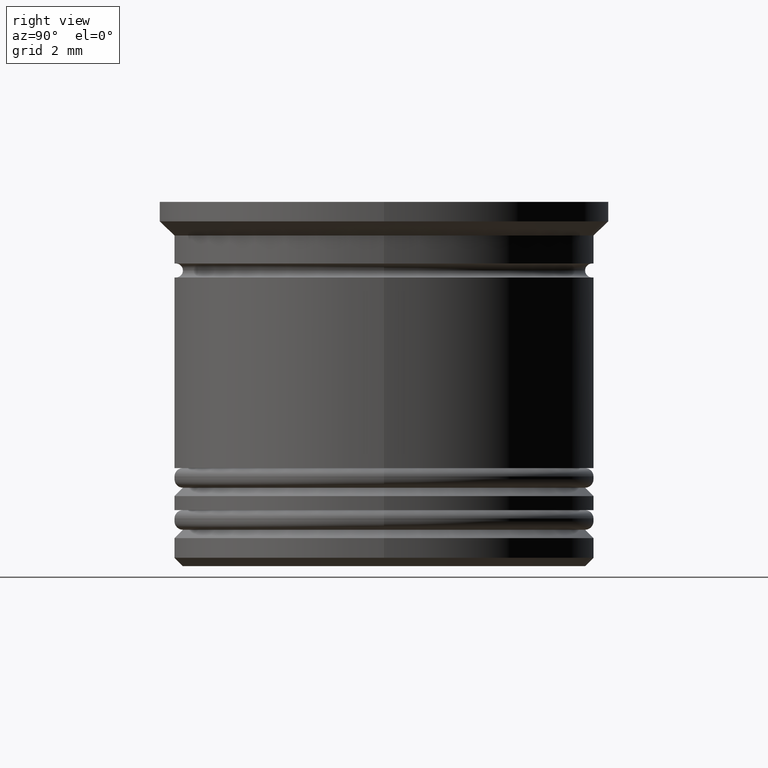
[diagram: clean part render]
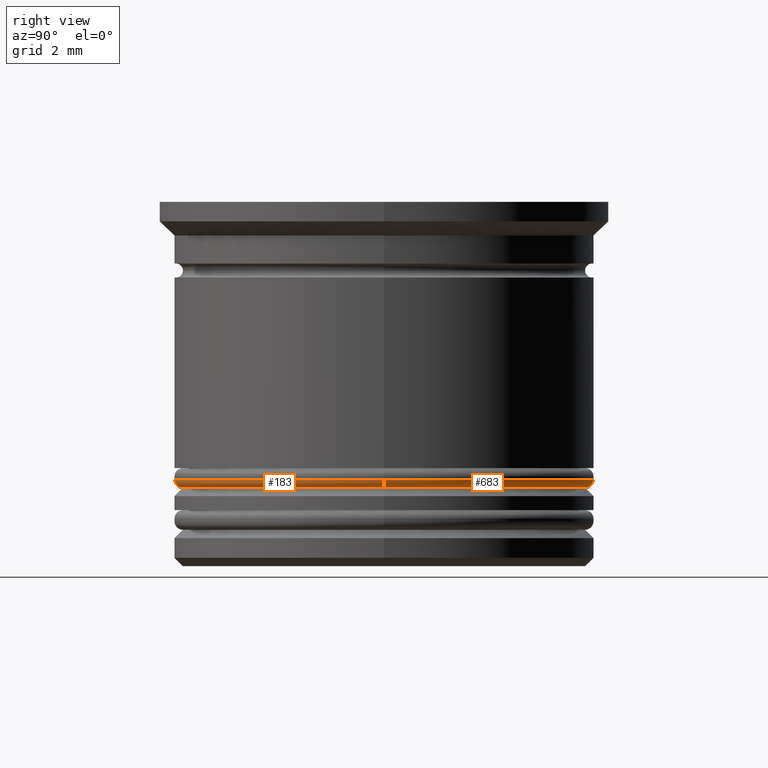
[diagram: same view with one multi-face feature highlighted, each face labeled with its STEP entity id]
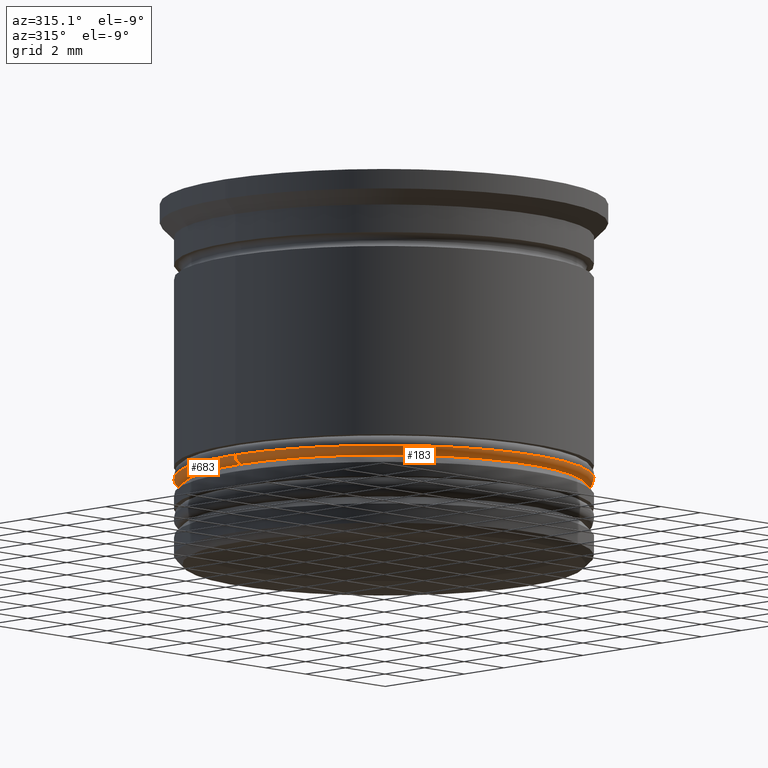
[diagram: same view with one multi-face feature highlighted, each face labeled with its STEP entity id]
A machine part, right view. The highlighted faces form ONE feature: a constant-radius fillet chain: 2 tangent blend faces with common blend radius 0.3 mm. The faces share edges in the B-rep.
A second angle (auxiliary view) of the same feature is appended — it is thin or edge-on in the first view.
Their STEP definitions:
[1] entity #183 (Torus):
#17 = EDGE_CURVE ( 'NONE', #503, #1600, #1275, .T. ) ;
#26 = CARTESIAN_POINT ( 'NONE',  ( 0.000000000000000000, 0.000000000000000000, -9.900000000000005684 ) ) ;
#31 = DIRECTION ( 'NONE',  ( 1.000000000000000000, 0.000000000000000000, 0.000000000000000000 ) ) ;
#52 = DIRECTION ( 'NONE',  ( 0.000000000000000000, 0.000000000000000000, 1.000000000000000000 ) ) ;
#75 = CARTESIAN_POINT ( 'NONE',  ( 0.000000000000000000, 0.000000000000000000, -9.900000000000005684 ) ) ;
#100 = DIRECTION ( 'NONE',  ( 1.000000000000000000, 0.000000000000000000, 0.000000000000000000 ) ) ;
#113 = ORIENTED_EDGE ( 'NONE', *, *, #1989, .F. ) ;
#122 = CARTESIAN_POINT ( 'NONE',  ( 7.200000000000001954, 0.000000000000000000, -9.900000000000005684 ) ) ;
#183 = ADVANCED_FACE ( 'NONE', ( #962 ), #1247, .T. ) ;
#232 = AXIS2_PLACEMENT_3D ( 'NONE', #1336, #1795, #100 ) ;
#361 = AXIS2_PLACEMENT_3D ( 'NONE', #26, #52, #31 ) ;
#462 = CIRCLE ( 'NONE', #1592, 0.2999999999999999334 ) ;
#503 = VERTEX_POINT ( 'NONE', #874 ) ;
#722 = DIRECTION ( 'NONE',  ( 0.000000000000000000, -1.000000000000000000, 0.000000000000000000 ) ) ;
#749 = CARTESIAN_POINT ( 'NONE',  ( -7.200000000000001954, 8.817456953860946247E-16, -9.900000000000005684 ) ) ;
#870 = ORIENTED_EDGE ( 'NONE', *, *, #1118, .T. ) ;
#874 = CARTESIAN_POINT ( 'NONE',  ( -7.500000000000001776, 9.184850993605149917E-16, -9.900000000000005684 ) ) ;
#919 = EDGE_LOOP ( 'NONE', ( #1378, #113, #870, #1260 ) ) ;
#962 = FACE_OUTER_BOUND ( 'NONE', #919, .T. ) ;
#1017 = CARTESIAN_POINT ( 'NONE',  ( -7.200000000000001954, 9.001153973733047589E-16, -10.20000000000000639 ) ) ;
#1034 = VERTEX_POINT ( 'NONE', #1757 ) ;
#1103 = CIRCLE ( 'NONE', #232, 7.200000000000001954 ) ;
#1118 = EDGE_CURVE ( 'NONE', #1034, #1600, #1876, .T. ) ;
#1179 = DIRECTION ( 'NONE',  ( 0.000000000000000000, 0.000000000000000000, 1.000000000000000000 ) ) ;
#1202 = DIRECTION ( 'NONE',  ( 0.000000000000000000, 0.000000000000000000, -1.000000000000000000 ) ) ;
#1229 = DIRECTION ( 'NONE',  ( 1.224646799147353207E-16, 1.000000000000000000, -0.000000000000000000 ) ) ;
#1247 = TOROIDAL_SURFACE ( 'NONE', #361, 7.200000000000001954, 0.2999999999999999889 ) ;
#1260 = ORIENTED_EDGE ( 'NONE', *, *, #17, .F. ) ;
#1272 = VERTEX_POINT ( 'NONE', #1017 ) ;
#1275 = CIRCLE ( 'NONE', #1469, 7.500000000000001776 ) ;
#1336 = CARTESIAN_POINT ( 'NONE',  ( 0.000000000000000000, 0.000000000000000000, -10.20000000000000639 ) ) ;
#1378 = ORIENTED_EDGE ( 'NONE', *, *, #1677, .F. ) ;
#1469 = AXIS2_PLACEMENT_3D ( 'NONE', #75, #1179, #1480 ) ;
#1480 = DIRECTION ( 'NONE',  ( 1.000000000000000000, 0.000000000000000000, 0.000000000000000000 ) ) ;
#1548 = DIRECTION ( 'NONE',  ( -1.000000000000000000, 1.224646799147353207E-16, 0.000000000000000000 ) ) ;
#1592 = AXIS2_PLACEMENT_3D ( 'NONE', #749, #1229, #1548 ) ;
#1600 = VERTEX_POINT ( 'NONE', #1691 ) ;
#1677 = EDGE_CURVE ( 'NONE', #1272, #503, #462, .T. ) ;
#1691 = CARTESIAN_POINT ( 'NONE',  ( 7.500000000000001776, 0.000000000000000000, -9.900000000000005684 ) ) ;
#1757 = CARTESIAN_POINT ( 'NONE',  ( 7.200000000000001954, 0.000000000000000000, -10.20000000000000639 ) ) ;
#1795 = DIRECTION ( 'NONE',  ( -0.000000000000000000, -0.000000000000000000, -1.000000000000000000 ) ) ;
#1876 = CIRCLE ( 'NONE', #1913, 0.2999999999999999334 ) ;
#1913 = AXIS2_PLACEMENT_3D ( 'NONE', #122, #722, #1202 ) ;
#1989 = EDGE_CURVE ( 'NONE', #1034, #1272, #1103, .T. ) ;
[2] entity #683 (Torus):
#96 = ORIENTED_EDGE ( 'NONE', *, *, #1118, .F. ) ;
#122 = CARTESIAN_POINT ( 'NONE',  ( 7.200000000000001954, 0.000000000000000000, -9.900000000000005684 ) ) ;
#175 = EDGE_LOOP ( 'NONE', ( #1418, #1435, #1901, #96 ) ) ;
#256 = EDGE_CURVE ( 'NONE', #1272, #1034, #490, .T. ) ;
#302 = AXIS2_PLACEMENT_3D ( 'NONE', #1581, #658, #679 ) ;
#462 = CIRCLE ( 'NONE', #1592, 0.2999999999999999334 ) ;
#490 = CIRCLE ( 'NONE', #1756, 7.200000000000001954 ) ;
#492 = TOROIDAL_SURFACE ( 'NONE', #617, 7.200000000000001954, 0.2999999999999999889 ) ;
#503 = VERTEX_POINT ( 'NONE', #874 ) ;
#617 = AXIS2_PLACEMENT_3D ( 'NONE', #883, #1537, #1397 ) ;
#658 = DIRECTION ( 'NONE',  ( 0.000000000000000000, 0.000000000000000000, 1.000000000000000000 ) ) ;
#679 = DIRECTION ( 'NONE',  ( 1.000000000000000000, 0.000000000000000000, 0.000000000000000000 ) ) ;
#683 = ADVANCED_FACE ( 'NONE', ( #737 ), #492, .T. ) ;
#722 = DIRECTION ( 'NONE',  ( 0.000000000000000000, -1.000000000000000000, 0.000000000000000000 ) ) ;
#737 = FACE_OUTER_BOUND ( 'NONE', #175, .T. ) ;
#749 = CARTESIAN_POINT ( 'NONE',  ( -7.200000000000001954, 8.817456953860946247E-16, -9.900000000000005684 ) ) ;
#874 = CARTESIAN_POINT ( 'NONE',  ( -7.500000000000001776, 9.184850993605149917E-16, -9.900000000000005684 ) ) ;
#883 = CARTESIAN_POINT ( 'NONE',  ( 0.000000000000000000, 0.000000000000000000, -9.900000000000005684 ) ) ;
#897 = DIRECTION ( 'NONE',  ( 1.000000000000000000, 0.000000000000000000, 0.000000000000000000 ) ) ;
#943 = CARTESIAN_POINT ( 'NONE',  ( 0.000000000000000000, 0.000000000000000000, -10.20000000000000639 ) ) ;
#1017 = CARTESIAN_POINT ( 'NONE',  ( -7.200000000000001954, 9.001153973733047589E-16, -10.20000000000000639 ) ) ;
#1034 = VERTEX_POINT ( 'NONE', #1757 ) ;
#1118 = EDGE_CURVE ( 'NONE', #1034, #1600, #1876, .T. ) ;
#1202 = DIRECTION ( 'NONE',  ( 0.000000000000000000, 0.000000000000000000, -1.000000000000000000 ) ) ;
#1229 = DIRECTION ( 'NONE',  ( 1.224646799147353207E-16, 1.000000000000000000, -0.000000000000000000 ) ) ;
#1246 = CIRCLE ( 'NONE', #302, 7.500000000000001776 ) ;
#1272 = VERTEX_POINT ( 'NONE', #1017 ) ;
#1397 = DIRECTION ( 'NONE',  ( 1.000000000000000000, 0.000000000000000000, 0.000000000000000000 ) ) ;
#1418 = ORIENTED_EDGE ( 'NONE', *, *, #256, .F. ) ;
#1435 = ORIENTED_EDGE ( 'NONE', *, *, #1677, .T. ) ;
#1460 = EDGE_CURVE ( 'NONE', #1600, #503, #1246, .T. ) ;
#1537 = DIRECTION ( 'NONE',  ( 0.000000000000000000, 0.000000000000000000, 1.000000000000000000 ) ) ;
#1548 = DIRECTION ( 'NONE',  ( -1.000000000000000000, 1.224646799147353207E-16, 0.000000000000000000 ) ) ;
#1581 = CARTESIAN_POINT ( 'NONE',  ( 0.000000000000000000, 0.000000000000000000, -9.900000000000005684 ) ) ;
#1592 = AXIS2_PLACEMENT_3D ( 'NONE', #749, #1229, #1548 ) ;
#1600 = VERTEX_POINT ( 'NONE', #1691 ) ;
#1677 = EDGE_CURVE ( 'NONE', #1272, #503, #462, .T. ) ;
#1691 = CARTESIAN_POINT ( 'NONE',  ( 7.500000000000001776, 0.000000000000000000, -9.900000000000005684 ) ) ;
#1756 = AXIS2_PLACEMENT_3D ( 'NONE', #943, #1808, #897 ) ;
#1757 = CARTESIAN_POINT ( 'NONE',  ( 7.200000000000001954, 0.000000000000000000, -10.20000000000000639 ) ) ;
#1808 = DIRECTION ( 'NONE',  ( -0.000000000000000000, -0.000000000000000000, -1.000000000000000000 ) ) ;
#1876 = CIRCLE ( 'NONE', #1913, 0.2999999999999999334 ) ;
#1901 = ORIENTED_EDGE ( 'NONE', *, *, #1460, .F. ) ;
#1913 = AXIS2_PLACEMENT_3D ( 'NONE', #122, #722, #1202 ) ;